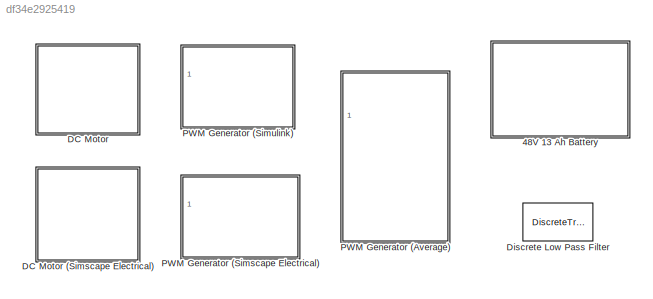
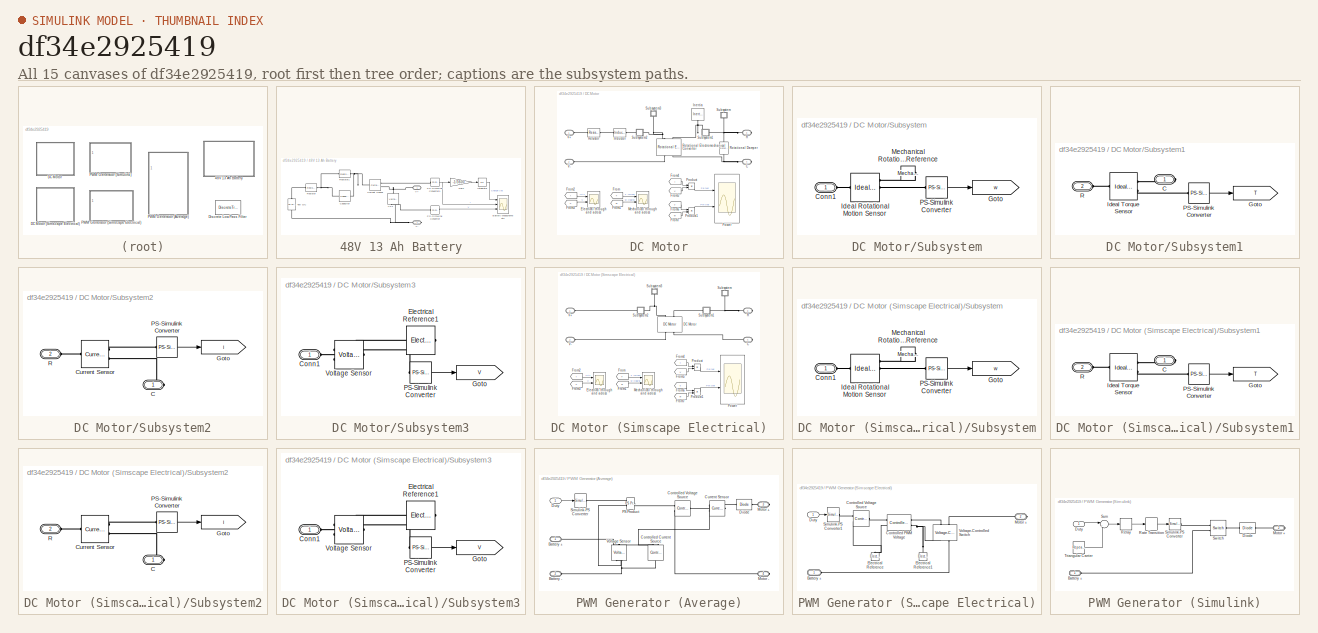
[diagram: thumbnail index - all 15 canvases of the model, root first then tree order]
MODEL slx_df34e2925419
KIND library
CONFIG AbsTol = 1e-3
CONFIG EnableMultiTasking = on
CONFIG FixedStep = auto
CONFIG MaxStep = auto
CONFIG MinStep = auto
CONFIG RelTol = 1e-3
CONFIG SampleTimeConstraint = Unconstrained
CONFIG SolverName = ode23t
CONFIG StartTime = 0.0
CONFIG StopTime = 10.0
BLOCK [SubSystem] 48V 13 Ah Battery
  Ports = [0, 0, 0, 0, 0, 0, 2]
  RequestExecContextInheritance = off
BLOCK [Reference] 48V 13 Ah Battery/48V DC  REF=fl_lib/Electrical/Electrical Sources/DC Voltage Source
  NameLocation = right
  Ports = [0, 0, 0, 0, 0, 1, 1]
  SourceBlock = fl_lib/Electrical/Electrical Sources/DC Voltage Source
  SourceProductBaseCode = SS
  SourceType = DC Voltage Source
BLOCK [Scope] 48V 13 Ah Battery/Battery Measurements
  Floating = off
  NumInputPorts = 3
  Ports = [3]
  ScopeSpecificationString = Simulink.scopes.TimeScopeBlockCfg('CurrentConfiguration', extmgr.ConfigurationSet(extmgr.Configuration('Core','General UI',true),extmgr.Configuration('Core','Source UI',true),extmgr.Configuration('Sources','WiredSimulink',true,'DataLoggingSaveFormat','StructureWithTime','DataLoggingDecimation','1','DataLoggingDecimateData',true),extmgr.Configuration('Visuals','Time Domain',true,'SerializedDisplays...<+3480ch>
BLOCK [Reference] 48V 13 Ah Battery/Capacitor  REF=fl_lib/Electrical/Electrical Elements/Capacitor
  Ports = [0, 0, 0, 0, 0, 1, 1]
  SourceBlock = fl_lib/Electrical/Electrical Elements/Capacitor
  SourceProductBaseCode = SS
  SourceType = Capacitor
BLOCK [Reference] 48V 13 Ah Battery/Current Sensor  REF=fl_lib/Electrical/Electrical Sensors/Current Sensor
  NameLocation = top
  Ports = [0, 0, 0, 0, 0, 1, 2]
  SourceBlock = fl_lib/Electrical/Electrical Sensors/Current Sensor
  SourceProductBaseCode = SS
  SourceType = Current Sensor
BLOCK [Gain] 48V 13 Ah Battery/Gain
  Gain = -1/3600
BLOCK [Integrator] 48V 13 Ah Battery/Integrator
  AttributesFormatString = Initial Charge = %<InitialCondition> Ah
  InitialCondition = 13
  NameLocation = top
  Ports = [1, 1]
BLOCK [Reference] 48V 13 Ah Battery/PS-Simulink Converter  REF=nesl_utility/PS-Simulink
Converter
  Ports = [0, 1, 0, 0, 0, 1]
  SourceBlock = nesl_utility/PS-Simulink\nConverter
  SourceProductBaseCode = SS
  SourceType = PS-Simulink\nConverter
BLOCK [Reference] 48V 13 Ah Battery/PS-Simulink Converter1  REF=nesl_utility/PS-Simulink
Converter
  Ports = [0, 1, 0, 0, 0, 1]
  SourceBlock = nesl_utility/PS-Simulink\nConverter
  SourceProductBaseCode = SS
  SourceType = PS-Simulink\nConverter
BLOCK [Reference] 48V 13 Ah Battery/Resistor  REF=fl_lib/Electrical/Electrical Elements/Resistor
  Ports = [0, 0, 0, 0, 0, 1, 1]
  SourceBlock = fl_lib/Electrical/Electrical Elements/Resistor
  SourceProductBaseCode = SS
  SourceType = Resistor
BLOCK [Reference] 48V 13 Ah Battery/Resistor1  REF=fl_lib/Electrical/Electrical Elements/Resistor
  Ports = [0, 0, 0, 0, 0, 1, 1]
  SourceBlock = fl_lib/Electrical/Electrical Elements/Resistor
  SourceProductBaseCode = SS
  SourceType = Resistor
BLOCK [PMIOPort] 48V 13 Ah Battery/V+
  Side = Right
BLOCK [PMIOPort] 48V 13 Ah Battery/V-
  Port = 2
  Side = Right
BLOCK [Reference] 48V 13 Ah Battery/VS1  REF=fl_lib/Electrical/Electrical Sensors/Voltage Sensor
  NameLocation = right
  Ports = [0, 0, 0, 0, 0, 1, 2]
  SourceBlock = fl_lib/Electrical/Electrical Sensors/Voltage Sensor
  SourceProductBaseCode = SS
  SourceType = Voltage Sensor
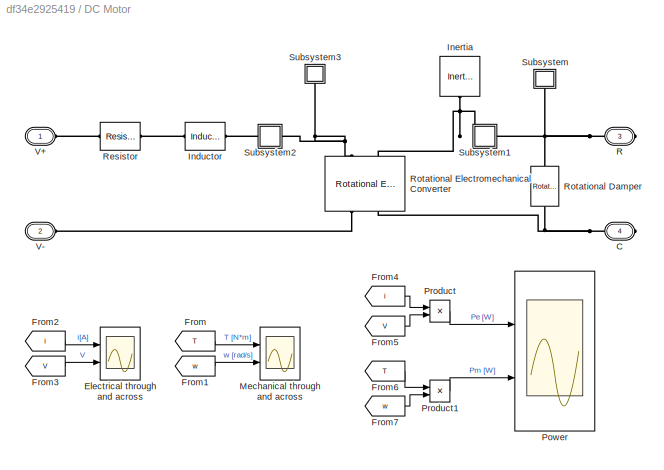
BLOCK [SubSystem] DC Motor
  Ports = [0, 0, 0, 0, 0, 2, 2]
  RequestExecContextInheritance = off
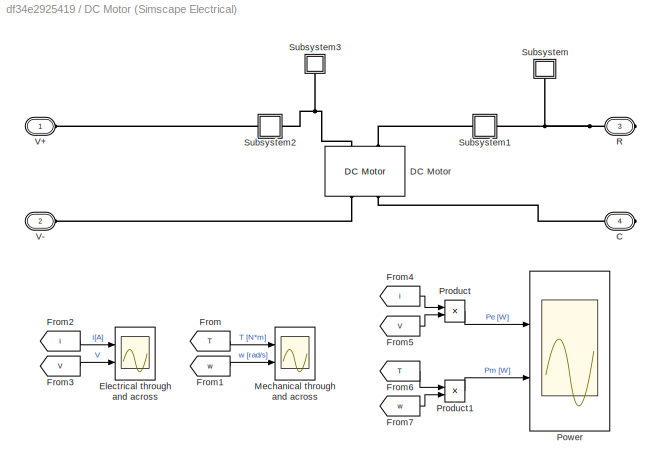
BLOCK [SubSystem] DC Motor (Simscape Electrical)
  Ports = [0, 0, 0, 0, 0, 2, 2]
  RequestExecContextInheritance = off
BLOCK [PMIOPort] DC Motor (Simscape Electrical)/C
  Port = 4
  Side = Right
  Tag = PMCPort
BLOCK [Reference] DC Motor (Simscape Electrical)/DC Motor  REF=ee_lib/Electromechanical/Brushed Motors/DC Motor
  NameLocation = right
  Ports = [0, 0, 0, 0, 0, 2, 2]
  SourceBlock = ee_lib/Electromechanical/Brushed Motors/DC Motor
  SourceProductBaseCode = PS
  SourceType = DC Motor
BLOCK [Scope] DC Motor (Simscape Electrical)/Electrical through and across
  Floating = off
  NumInputPorts = 2
  Ports = [2]
  ScopeSpecificationString = Simulink.scopes.TimeScopeBlockCfg('CurrentConfiguration', extmgr.ConfigurationSet(extmgr.Configuration('Core','General UI',true),extmgr.Configuration('Core','Source UI',true),extmgr.Configuration('Sources','WiredSimulink',true,'DataLoggingVariableName','ScopeData3','DataLoggingSaveFormat','StructureWithTime','DataLoggingDecimation','1','DataLoggingDecimateData',true),extmgr.Configuration('Visuals'...<+2704ch>
BLOCK [From] DC Motor (Simscape Electrical)/From
  GotoTag = T
  TagVisibility = global
BLOCK [From] DC Motor (Simscape Electrical)/From1
  GotoTag = w
  TagVisibility = global
BLOCK [From] DC Motor (Simscape Electrical)/From2
  GotoTag = i
  TagVisibility = global
BLOCK [From] DC Motor (Simscape Electrical)/From3
  GotoTag = V
  TagVisibility = global
BLOCK [From] DC Motor (Simscape Electrical)/From4
  GotoTag = i
  TagVisibility = global
BLOCK [From] DC Motor (Simscape Electrical)/From5
  GotoTag = V
  TagVisibility = global
BLOCK [From] DC Motor (Simscape Electrical)/From6
  GotoTag = T
  TagVisibility = global
BLOCK [From] DC Motor (Simscape Electrical)/From7
  GotoTag = w
  TagVisibility = global
BLOCK [Scope] DC Motor (Simscape Electrical)/Mechanical through and across
  Floating = off
  NumInputPorts = 2
  Ports = [2]
  ScopeSpecificationString = Simulink.scopes.TimeScopeBlockCfg('CurrentConfiguration', extmgr.ConfigurationSet(extmgr.Configuration('Core','General UI',true),extmgr.Configuration('Core','Source UI',true),extmgr.Configuration('Sources','WiredSimulink',true,'DataLoggingVariableName','ScopeData4','DataLoggingSaveFormat','StructureWithTime','DataLoggingDecimation','1','DataLoggingDecimateData',true),extmgr.Configuration('Visuals'...<+2684ch>
BLOCK [Scope] DC Motor (Simscape Electrical)/Power
  Floating = off
  NumInputPorts = 2
  Ports = [2]
  ScopeSpecificationString = Simulink.scopes.TimeScopeBlockCfg('CurrentConfiguration', extmgr.ConfigurationSet(extmgr.Configuration('Core','General UI',true),extmgr.Configuration('Core','Source UI',true),extmgr.Configuration('Sources','WiredSimulink',true,'DataLoggingVariableName','ScopeData2','DataLoggingSaveFormat','StructureWithTime','DataLoggingDecimation','1','DataLoggingDecimateData',true),extmgr.Configuration('Visuals'...<+2681ch>
BLOCK [Product] DC Motor (Simscape Electrical)/Product
  Ports = [2, 1]
  RndMeth = Zero
BLOCK [Product] DC Motor (Simscape Electrical)/Product1
  Ports = [2, 1]
  RndMeth = Zero
BLOCK [PMIOPort] DC Motor (Simscape Electrical)/R
  Port = 3
  Side = Right
  Tag = PMCPort
BLOCK [SubSystem] DC Motor (Simscape Electrical)/Subsystem
  NameLocation = right
  Ports = [0, 0, 0, 0, 0, 1]
  RequestExecContextInheritance = off
BLOCK [PMIOPort] DC Motor (Simscape Electrical)/Subsystem/Conn1
  Side = Left
BLOCK [Goto] DC Motor (Simscape Electrical)/Subsystem/Goto
  GotoTag = w
  TagVisibility = global
BLOCK [Reference] DC Motor (Simscape Electrical)/Subsystem/Ideal Rotational Motion Sensor  REF=fl_lib/Mechanical/Mechanical Sensors/Ideal Rotational
Motion Sensor
  Ports = [0, 0, 0, 0, 0, 1, 3]
  SourceBlock = fl_lib/Mechanical/Mechanical Sensors/Ideal Rotational\nMotion Sensor
  SourceProductBaseCode = SS
  SourceType = Ideal Rotational\nMotion Sensor
BLOCK [Reference] DC Motor (Simscape Electrical)/Subsystem/Mechanical Rotational Reference  REF=fl_lib/Mechanical/Rotational Elements/Mechanical
Rotational Reference
  NameLocation = top
  Ports = [0, 0, 0, 0, 0, 1]
  SourceBlock = fl_lib/Mechanical/Rotational Elements/Mechanical\nRotational Reference
  SourceProductBaseCode = SS
  SourceType = Mechanical\nRotational Reference
BLOCK [Reference] DC Motor (Simscape Electrical)/Subsystem/PS-Simulink Converter  REF=nesl_utility/PS-Simulink
Converter
  Ports = [0, 1, 0, 0, 0, 1]
  SourceBlock = nesl_utility/PS-Simulink\nConverter
  SourceProductBaseCode = SS
  SourceType = PS-Simulink\nConverter
BLOCK [SubSystem] DC Motor (Simscape Electrical)/Subsystem1
  Ports = [0, 0, 0, 0, 0, 1, 1]
  RequestExecContextInheritance = off
BLOCK [PMIOPort] DC Motor (Simscape Electrical)/Subsystem1/C
  Side = Right
BLOCK [Goto] DC Motor (Simscape Electrical)/Subsystem1/Goto
  GotoTag = T
  TagVisibility = global
BLOCK [Reference] DC Motor (Simscape Electrical)/Subsystem1/Ideal Torque Sensor  REF=fl_lib/Mechanical/Mechanical Sensors/Ideal Torque Sensor
  Ports = [0, 0, 0, 0, 0, 1, 2]
  SourceBlock = fl_lib/Mechanical/Mechanical Sensors/Ideal Torque Sensor
  SourceProductBaseCode = SS
  SourceType = Ideal Torque Sensor
BLOCK [Reference] DC Motor (Simscape Electrical)/Subsystem1/PS-Simulink Converter  REF=nesl_utility/PS-Simulink
Converter
  Ports = [0, 1, 0, 0, 0, 1]
  SourceBlock = nesl_utility/PS-Simulink\nConverter
  SourceProductBaseCode = SS
  SourceType = PS-Simulink\nConverter
BLOCK [PMIOPort] DC Motor (Simscape Electrical)/Subsystem1/R
  Port = 2
  Side = Left
BLOCK [SubSystem] DC Motor (Simscape Electrical)/Subsystem2
  Ports = [0, 0, 0, 0, 0, 1, 1]
  RequestExecContextInheritance = off
BLOCK [PMIOPort] DC Motor (Simscape Electrical)/Subsystem2/C
  Side = Right
BLOCK [Reference] DC Motor (Simscape Electrical)/Subsystem2/Current Sensor  REF=fl_lib/Electrical/Electrical Sensors/Current Sensor
  Ports = [0, 0, 0, 0, 0, 1, 2]
  SourceBlock = fl_lib/Electrical/Electrical Sensors/Current Sensor
  SourceProductBaseCode = SS
  SourceType = Current Sensor
BLOCK [Goto] DC Motor (Simscape Electrical)/Subsystem2/Goto
  GotoTag = i
  TagVisibility = global
BLOCK [Reference] DC Motor (Simscape Electrical)/Subsystem2/PS-Simulink Converter  REF=nesl_utility/PS-Simulink
Converter
  Ports = [0, 1, 0, 0, 0, 1]
  SourceBlock = nesl_utility/PS-Simulink\nConverter
  SourceProductBaseCode = SS
  SourceType = PS-Simulink\nConverter
BLOCK [PMIOPort] DC Motor (Simscape Electrical)/Subsystem2/R
  Port = 2
  Side = Left
BLOCK [SubSystem] DC Motor (Simscape Electrical)/Subsystem3
  NameLocation = right
  Ports = [0, 0, 0, 0, 0, 1]
  RequestExecContextInheritance = off
BLOCK [PMIOPort] DC Motor (Simscape Electrical)/Subsystem3/Conn1
  Side = Left
BLOCK [Reference] DC Motor (Simscape Electrical)/Subsystem3/Electrical Reference1  REF=fl_lib/Electrical/Electrical Elements/Electrical Reference
  NameLocation = top
  Ports = [0, 0, 0, 0, 0, 1]
  SourceBlock = fl_lib/Electrical/Electrical Elements/Electrical Reference
  SourceProductBaseCode = SS
  SourceType = Electrical Reference
BLOCK [Goto] DC Motor (Simscape Electrical)/Subsystem3/Goto
  GotoTag = V
  TagVisibility = global
BLOCK [Reference] DC Motor (Simscape Electrical)/Subsystem3/PS-Simulink Converter  REF=nesl_utility/PS-Simulink
Converter
  Ports = [0, 1, 0, 0, 0, 1]
  SourceBlock = nesl_utility/PS-Simulink\nConverter
  SourceProductBaseCode = SS
  SourceType = PS-Simulink\nConverter
BLOCK [Reference] DC Motor (Simscape Electrical)/Subsystem3/Voltage Sensor  REF=fl_lib/Electrical/Electrical Sensors/Voltage Sensor
  NameLocation = top
  Ports = [0, 0, 0, 0, 0, 1, 2]
  SourceBlock = fl_lib/Electrical/Electrical Sensors/Voltage Sensor
  SourceProductBaseCode = SS
  SourceType = Voltage Sensor
BLOCK [PMIOPort] DC Motor (Simscape Electrical)/V+
  NameLocation = top
  Side = Left
  Tag = PMCPort
BLOCK [PMIOPort] DC Motor (Simscape Electrical)/V-
  NameLocation = top
  Port = 2
  Side = Left
  Tag = PMCPort
BLOCK [PMIOPort] DC Motor/C
  Port = 4
  Side = Right
  Tag = PMCPort
BLOCK [Scope] DC Motor/Electrical through and across
  Floating = off
  NumInputPorts = 2
  Ports = [2]
  ScopeSpecificationString = Simulink.scopes.TimeScopeBlockCfg('CurrentConfiguration', extmgr.ConfigurationSet(extmgr.Configuration('Core','General UI',true),extmgr.Configuration('Core','Source UI',true),extmgr.Configuration('Sources','WiredSimulink',true,'DataLoggingVariableName','ScopeData3','DataLoggingSaveFormat','StructureWithTime','DataLoggingDecimation','1','DataLoggingDecimateData',true),extmgr.Configuration('Visuals'...<+2704ch>
BLOCK [From] DC Motor/From
  GotoTag = T
  TagVisibility = global
BLOCK [From] DC Motor/From1
  GotoTag = w
  TagVisibility = global
BLOCK [From] DC Motor/From2
  GotoTag = i
  TagVisibility = global
BLOCK [From] DC Motor/From3
  GotoTag = V
  TagVisibility = global
BLOCK [From] DC Motor/From4
  GotoTag = i
  TagVisibility = global
BLOCK [From] DC Motor/From5
  GotoTag = V
  TagVisibility = global
BLOCK [From] DC Motor/From6
  GotoTag = T
  TagVisibility = global
BLOCK [From] DC Motor/From7
  GotoTag = w
  TagVisibility = global
BLOCK [Reference] DC Motor/Inductor  REF=fl_lib/Electrical/Electrical Elements/Inductor
  Ports = [0, 0, 0, 0, 0, 1, 1]
  SourceBlock = fl_lib/Electrical/Electrical Elements/Inductor
  SourceProductBaseCode = SS
  SourceType = Inductor
BLOCK [Reference] DC Motor/Inertia  REF=fl_lib/Mechanical/Rotational Elements/Inertia
  NameLocation = left
  Ports = [0, 0, 0, 0, 0, 1]
  SourceBlock = fl_lib/Mechanical/Rotational Elements/Inertia
  SourceProductBaseCode = SS
  SourceType = Inertia
BLOCK [Scope] DC Motor/Mechanical through and across
  Floating = off
  NumInputPorts = 2
  Ports = [2]
  ScopeSpecificationString = Simulink.scopes.TimeScopeBlockCfg('CurrentConfiguration', extmgr.ConfigurationSet(extmgr.Configuration('Core','General UI',true),extmgr.Configuration('Core','Source UI',true),extmgr.Configuration('Sources','WiredSimulink',true,'DataLoggingVariableName','ScopeData4','DataLoggingSaveFormat','StructureWithTime','DataLoggingDecimation','1','DataLoggingDecimateData',true),extmgr.Configuration('Visuals'...<+2684ch>
BLOCK [Scope] DC Motor/Power
  Floating = off
  NumInputPorts = 2
  Ports = [2]
  ScopeSpecificationString = Simulink.scopes.TimeScopeBlockCfg('CurrentConfiguration', extmgr.ConfigurationSet(extmgr.Configuration('Core','General UI',true),extmgr.Configuration('Core','Source UI',true),extmgr.Configuration('Sources','WiredSimulink',true,'DataLoggingVariableName','ScopeData2','DataLoggingSaveFormat','StructureWithTime','DataLoggingDecimation','1','DataLoggingDecimateData',true),extmgr.Configuration('Visuals'...<+2681ch>
BLOCK [Product] DC Motor/Product
  Ports = [2, 1]
  RndMeth = Zero
BLOCK [Product] DC Motor/Product1
  Ports = [2, 1]
  RndMeth = Zero
BLOCK [PMIOPort] DC Motor/R
  Port = 3
  Side = Right
  Tag = PMCPort
BLOCK [Reference] DC Motor/Resistor  REF=fl_lib/Electrical/Electrical Elements/Resistor
  Ports = [0, 0, 0, 0, 0, 1, 1]
  SourceBlock = fl_lib/Electrical/Electrical Elements/Resistor
  SourceProductBaseCode = SS
  SourceType = Resistor
BLOCK [Reference] DC Motor/Rotational Damper  REF=fl_lib/Mechanical/Rotational Elements/Rotational Damper
  NameLocation = right
  Ports = [0, 0, 0, 0, 0, 1, 1]
  SourceBlock = fl_lib/Mechanical/Rotational Elements/Rotational Damper
  SourceProductBaseCode = SS
  SourceType = Rotational Damper
BLOCK [Reference] DC Motor/Rotational Electromechanical Converter  REF=fl_lib/Electrical/Electrical Elements/Rotational
Electromechanical
Converter
  NameLocation = right
  Ports = [0, 0, 0, 0, 0, 2, 2]
  SourceBlock = fl_lib/Electrical/Electrical Elements/Rotational\nElectromechanical\nConverter
  SourceProductBaseCode = SS
  SourceType = Rotational\nElectromechanical\nConverter
BLOCK [SubSystem] DC Motor/Subsystem
  NameLocation = right
  Ports = [0, 0, 0, 0, 0, 1]
  RequestExecContextInheritance = off
BLOCK [PMIOPort] DC Motor/Subsystem/Conn1
  Side = Left
BLOCK [Goto] DC Motor/Subsystem/Goto
  GotoTag = w
  TagVisibility = global
BLOCK [Reference] DC Motor/Subsystem/Ideal Rotational Motion Sensor  REF=fl_lib/Mechanical/Mechanical Sensors/Ideal Rotational
Motion Sensor
  Ports = [0, 0, 0, 0, 0, 1, 3]
  SourceBlock = fl_lib/Mechanical/Mechanical Sensors/Ideal Rotational\nMotion Sensor
  SourceProductBaseCode = SS
  SourceType = Ideal Rotational\nMotion Sensor
BLOCK [Reference] DC Motor/Subsystem/Mechanical Rotational Reference  REF=fl_lib/Mechanical/Rotational Elements/Mechanical
Rotational Reference
  NameLocation = top
  Ports = [0, 0, 0, 0, 0, 1]
  SourceBlock = fl_lib/Mechanical/Rotational Elements/Mechanical\nRotational Reference
  SourceProductBaseCode = SS
  SourceType = Mechanical\nRotational Reference
BLOCK [Reference] DC Motor/Subsystem/PS-Simulink Converter  REF=nesl_utility/PS-Simulink
Converter
  Ports = [0, 1, 0, 0, 0, 1]
  SourceBlock = nesl_utility/PS-Simulink\nConverter
  SourceProductBaseCode = SS
  SourceType = PS-Simulink\nConverter
BLOCK [SubSystem] DC Motor/Subsystem1
  Ports = [0, 0, 0, 0, 0, 1, 1]
  RequestExecContextInheritance = off
BLOCK [PMIOPort] DC Motor/Subsystem1/C
  Side = Right
BLOCK [Goto] DC Motor/Subsystem1/Goto
  GotoTag = T
  TagVisibility = global
BLOCK [Reference] DC Motor/Subsystem1/Ideal Torque Sensor  REF=fl_lib/Mechanical/Mechanical Sensors/Ideal Torque Sensor
  Ports = [0, 0, 0, 0, 0, 1, 2]
  SourceBlock = fl_lib/Mechanical/Mechanical Sensors/Ideal Torque Sensor
  SourceProductBaseCode = SS
  SourceType = Ideal Torque Sensor
BLOCK [Reference] DC Motor/Subsystem1/PS-Simulink Converter  REF=nesl_utility/PS-Simulink
Converter
  Ports = [0, 1, 0, 0, 0, 1]
  SourceBlock = nesl_utility/PS-Simulink\nConverter
  SourceProductBaseCode = SS
  SourceType = PS-Simulink\nConverter
BLOCK [PMIOPort] DC Motor/Subsystem1/R
  Port = 2
  Side = Left
BLOCK [SubSystem] DC Motor/Subsystem2
  Ports = [0, 0, 0, 0, 0, 1, 1]
  RequestExecContextInheritance = off
BLOCK [PMIOPort] DC Motor/Subsystem2/C
  Side = Right
BLOCK [Reference] DC Motor/Subsystem2/Current Sensor  REF=fl_lib/Electrical/Electrical Sensors/Current Sensor
  Ports = [0, 0, 0, 0, 0, 1, 2]
  SourceBlock = fl_lib/Electrical/Electrical Sensors/Current Sensor
  SourceProductBaseCode = SS
  SourceType = Current Sensor
BLOCK [Goto] DC Motor/Subsystem2/Goto
  GotoTag = i
  TagVisibility = global
BLOCK [Reference] DC Motor/Subsystem2/PS-Simulink Converter  REF=nesl_utility/PS-Simulink
Converter
  Ports = [0, 1, 0, 0, 0, 1]
  SourceBlock = nesl_utility/PS-Simulink\nConverter
  SourceProductBaseCode = SS
  SourceType = PS-Simulink\nConverter
BLOCK [PMIOPort] DC Motor/Subsystem2/R
  Port = 2
  Side = Left
BLOCK [SubSystem] DC Motor/Subsystem3
  NameLocation = right
  Ports = [0, 0, 0, 0, 0, 1]
  RequestExecContextInheritance = off
BLOCK [PMIOPort] DC Motor/Subsystem3/Conn1
  Side = Left
BLOCK [Reference] DC Motor/Subsystem3/Electrical Reference1  REF=fl_lib/Electrical/Electrical Elements/Electrical Reference
  NameLocation = top
  Ports = [0, 0, 0, 0, 0, 1]
  SourceBlock = fl_lib/Electrical/Electrical Elements/Electrical Reference
  SourceProductBaseCode = SS
  SourceType = Electrical Reference
BLOCK [Goto] DC Motor/Subsystem3/Goto
  GotoTag = V
  TagVisibility = global
BLOCK [Reference] DC Motor/Subsystem3/PS-Simulink Converter  REF=nesl_utility/PS-Simulink
Converter
  Ports = [0, 1, 0, 0, 0, 1]
  SourceBlock = nesl_utility/PS-Simulink\nConverter
  SourceProductBaseCode = SS
  SourceType = PS-Simulink\nConverter
BLOCK [Reference] DC Motor/Subsystem3/Voltage Sensor  REF=fl_lib/Electrical/Electrical Sensors/Voltage Sensor
  NameLocation = top
  Ports = [0, 0, 0, 0, 0, 1, 2]
  SourceBlock = fl_lib/Electrical/Electrical Sensors/Voltage Sensor
  SourceProductBaseCode = SS
  SourceType = Voltage Sensor
BLOCK [PMIOPort] DC Motor/V+
  NameLocation = top
  Side = Left
  Tag = PMCPort
BLOCK [PMIOPort] DC Motor/V-
  NameLocation = top
  Port = 2
  Side = Left
  Tag = PMCPort
BLOCK [DiscreteTransferFcn] Discrete Low Pass Filter
  Denominator = [1 -0.00186744]
  InputPortMap = u0
  Numerator = [0.9981326]
  Ports = [1, 1]
  SampleTime = 0.05
BLOCK [SubSystem] PWM Generator (Average)
  Ports = [1, 0, 0, 0, 0, 2, 2]
  RequestExecContextInheritance = off
BLOCK [PMIOPort] PWM Generator (Average)/Battery +
  Side = Left
BLOCK [PMIOPort] PWM Generator (Average)/Battery -
  Port = 2
  Side = Left
BLOCK [Reference] PWM Generator (Average)/Controlled Current Source  REF=fl_lib/Electrical/Electrical Sources/Controlled Current
Source
  NameLocation = left
  Ports = [0, 0, 0, 0, 0, 1, 2]
  SourceBlock = fl_lib/Electrical/Electrical Sources/Controlled Current\nSource
  SourceProductBaseCode = SS
  SourceType = Controlled Current\nSource
BLOCK [Reference] PWM Generator (Average)/Controlled Voltage Source  REF=fl_lib/Electrical/Electrical Sources/Controlled Voltage
Source
  NameLocation = top
  Ports = [0, 0, 0, 0, 0, 1, 2]
  SourceBlock = fl_lib/Electrical/Electrical Sources/Controlled Voltage\nSource
  SourceProductBaseCode = SS
  SourceType = Controlled Voltage\nSource
BLOCK [Reference] PWM Generator (Average)/Current Sensor  REF=fl_lib/Electrical/Electrical Sensors/Current Sensor
  NameLocation = top
  Ports = [0, 0, 0, 0, 0, 1, 2]
  SourceBlock = fl_lib/Electrical/Electrical Sensors/Current Sensor
  SourceProductBaseCode = SS
  SourceType = Current Sensor
BLOCK [Reference] PWM Generator (Average)/Diode  REF=fl_lib/Electrical/Electrical Elements/Diode
  Ports = [0, 0, 0, 0, 0, 1, 1]
  SourceBlock = fl_lib/Electrical/Electrical Elements/Diode
  SourceProductBaseCode = SS
  SourceType = Diode
BLOCK [Inport] PWM Generator (Average)/Duty
BLOCK [PMIOPort] PWM Generator (Average)/Motor +
  Port = 3
  Side = Right
BLOCK [PMIOPort] PWM Generator (Average)/Motor -
  Port = 4
  Side = Right
BLOCK [Reference] PWM Generator (Average)/PS Product  REF=fl_lib/Physical Signals/Functions/PS Product
  NameLocation = top
  Ports = [0, 0, 0, 0, 0, 2, 1]
  SourceBlock = fl_lib/Physical Signals/Functions/PS Product
  SourceProductBaseCode = SS
  SourceType = PS Product
BLOCK [Reference] PWM Generator (Average)/Simulink-PS Converter  REF=nesl_utility/Simulink-PS
Converter
  Ports = [1, 0, 0, 0, 0, 0, 1]
  SourceBlock = nesl_utility/Simulink-PS\nConverter
  SourceProductBaseCode = SS
  SourceType = Simulink-PS\nConverter
BLOCK [Reference] PWM Generator (Average)/Voltage Sensor  REF=fl_lib/Electrical/Electrical Sensors/Voltage Sensor
  NameLocation = left
  Ports = [0, 0, 0, 0, 0, 1, 2]
  SourceBlock = fl_lib/Electrical/Electrical Sensors/Voltage Sensor
  SourceProductBaseCode = SS
  SourceType = Voltage Sensor
BLOCK [SubSystem] PWM Generator (Simscape Electrical)
  Ports = [1, 0, 0, 0, 0, 1, 1]
  RequestExecContextInheritance = off
BLOCK [PMIOPort] PWM Generator (Simscape Electrical)/Battery +
  Side = Left
BLOCK [Reference] PWM Generator (Simscape Electrical)/Controlled PWM Voltage  REF=ee_lib/Integrated Circuits/Controlled PWM
Voltage
  Ports = [0, 0, 0, 0, 0, 2, 2]
  SourceBlock = ee_lib/Integrated Circuits/Controlled PWM\nVoltage
  SourceProductBaseCode = PS
  SourceType = Controlled PWM\nVoltage
BLOCK [Reference] PWM Generator (Simscape Electrical)/Controlled Voltage Source  REF=fl_lib/Electrical/Electrical Sources/Controlled Voltage
Source
  NameLocation = top
  Ports = [0, 0, 0, 0, 0, 1, 2]
  SourceBlock = fl_lib/Electrical/Electrical Sources/Controlled Voltage\nSource
  SourceProductBaseCode = SS
  SourceType = Controlled Voltage\nSource
BLOCK [Inport] PWM Generator (Simscape Electrical)/Duty
BLOCK [Reference] PWM Generator (Simscape Electrical)/Electrical Reference  REF=fl_lib/Electrical/Electrical Elements/Electrical Reference
  NameLocation = right
  Ports = [0, 0, 0, 0, 0, 1]
  SourceBlock = fl_lib/Electrical/Electrical Elements/Electrical Reference
  SourceProductBaseCode = SS
  SourceType = Electrical Reference
BLOCK [Reference] PWM Generator (Simscape Electrical)/Electrical Reference1  REF=fl_lib/Electrical/Electrical Elements/Electrical Reference
  NameLocation = right
  Ports = [0, 0, 0, 0, 0, 1]
  SourceBlock = fl_lib/Electrical/Electrical Elements/Electrical Reference
  SourceProductBaseCode = SS
  SourceType = Electrical Reference
BLOCK [PMIOPort] PWM Generator (Simscape Electrical)/Motor +
  Port = 2
  Side = Right
BLOCK [Reference] PWM Generator (Simscape Electrical)/Simulink-PS Converter1  REF=nesl_utility/Simulink-PS
Converter
  Ports = [1, 0, 0, 0, 0, 0, 1]
  SourceBlock = nesl_utility/Simulink-PS\nConverter
  SourceProductBaseCode = SS
  SourceType = Simulink-PS\nConverter
BLOCK [Reference] PWM Generator (Simscape Electrical)/Voltage-Controlled Switch  REF=ee_lib/Additional
Components/SPICE Passives/Voltage-Controlled
Switch
  NameLocation = right
  Ports = [0, 0, 0, 0, 0, 2, 2]
  SourceBlock = ee_lib/Additional\nComponents/SPICE Passives/Voltage-Controlled\nSwitch
  SourceProductBaseCode = PS
  SourceType = Voltage-Controlled\nSwitch
BLOCK [SubSystem] PWM Generator (Simulink)
  Ports = [1, 0, 0, 0, 0, 1, 1]
  RequestExecContextInheritance = off
BLOCK [PMIOPort] PWM Generator (Simulink)/Battery +
  Side = Left
BLOCK [Reference] PWM Generator (Simulink)/Diode  REF=fl_lib/Electrical/Electrical Elements/Diode
  Ports = [0, 0, 0, 0, 0, 1, 1]
  SourceBlock = fl_lib/Electrical/Electrical Elements/Diode
  SourceProductBaseCode = SS
  SourceType = Diode
BLOCK [Inport] PWM Generator (Simulink)/Duty
BLOCK [PMIOPort] PWM Generator (Simulink)/Motor +
  Port = 2
  Side = Right
BLOCK [RateTransition] PWM Generator (Simulink)/Rate Transition
  OutPortSampleTime = Ts
BLOCK [Relay] PWM Generator (Simulink)/Relay
  OffSwitchValue = 1e-6
  OnSwitchValue = 1e-6
BLOCK [Reference] PWM Generator (Simulink)/Simulink-PS Converter  REF=nesl_utility/Simulink-PS
Converter
  Ports = [1, 0, 0, 0, 0, 0, 1]
  SourceBlock = nesl_utility/Simulink-PS\nConverter
  SourceProductBaseCode = SS
  SourceType = Simulink-PS\nConverter
BLOCK [Sum] PWM Generator (Simulink)/Sum
  Inputs = |+-
  Ports = [2, 1]
BLOCK [Reference] PWM Generator (Simulink)/Switch  REF=fl_lib/Electrical/Electrical Elements/Switch
  Ports = [0, 0, 0, 0, 0, 1, 2]
  SourceBlock = fl_lib/Electrical/Electrical Elements/Switch
  SourceProductBaseCode = SS
  SourceType = Switch
BLOCK [Reference] PWM Generator (Simulink)/Triangular Carrier  REF=simulink/Sources/Repeating
Sequence
  Ports = [0, 1]
  SourceBlock = simulink/Sources/Repeating\nSequence
  SourceProductBaseCode = SL
  SourceType = Repeating table
LINE 48V 13 Ah Battery/Gain:1 -> 48V 13 Ah Battery/Integrator:1
LINE 48V 13 Ah Battery/Integrator:1 -> 48V 13 Ah Battery/Battery Measurements:1
NET 48V 13 Ah Battery/PS-Simulink Converter1:1 -> 48V 13 Ah Battery/Battery Measurements:2, 48V 13 Ah Battery/Gain:1
LINE 48V 13 Ah Battery/PS-Simulink Converter:1 -> 48V 13 Ah Battery/Battery Measurements:3
LINE DC Motor (Simscape Electrical)/From1:1 -> DC Motor (Simscape Electrical)/Mechanical through and across:2
LINE DC Motor (Simscape Electrical)/From2:1 -> DC Motor (Simscape Electrical)/Electrical through and across:1
LINE DC Motor (Simscape Electrical)/From3:1 -> DC Motor (Simscape Electrical)/Electrical through and across:2
LINE DC Motor (Simscape Electrical)/From4:1 -> DC Motor (Simscape Electrical)/Product:1
LINE DC Motor (Simscape Electrical)/From5:1 -> DC Motor (Simscape Electrical)/Product:2
LINE DC Motor (Simscape Electrical)/From6:1 -> DC Motor (Simscape Electrical)/Product1:1
LINE DC Motor (Simscape Electrical)/From7:1 -> DC Motor (Simscape Electrical)/Product1:2
LINE DC Motor (Simscape Electrical)/From:1 -> DC Motor (Simscape Electrical)/Mechanical through and across:1
LINE DC Motor (Simscape Electrical)/Product1:1 -> DC Motor (Simscape Electrical)/Power:2
LINE DC Motor (Simscape Electrical)/Product:1 -> DC Motor (Simscape Electrical)/Power:1
LINE DC Motor (Simscape Electrical)/Subsystem/PS-Simulink Converter:1 -> DC Motor (Simscape Electrical)/Subsystem/Goto:1
LINE DC Motor (Simscape Electrical)/Subsystem1/PS-Simulink Converter:1 -> DC Motor (Simscape Electrical)/Subsystem1/Goto:1
LINE DC Motor (Simscape Electrical)/Subsystem2/PS-Simulink Converter:1 -> DC Motor (Simscape Electrical)/Subsystem2/Goto:1
LINE DC Motor (Simscape Electrical)/Subsystem3/PS-Simulink Converter:1 -> DC Motor (Simscape Electrical)/Subsystem3/Goto:1
LINE DC Motor/From1:1 -> DC Motor/Mechanical through and across:2
LINE DC Motor/From2:1 -> DC Motor/Electrical through and across:1
LINE DC Motor/From3:1 -> DC Motor/Electrical through and across:2
LINE DC Motor/From4:1 -> DC Motor/Product:1
LINE DC Motor/From5:1 -> DC Motor/Product:2
LINE DC Motor/From6:1 -> DC Motor/Product1:1
LINE DC Motor/From7:1 -> DC Motor/Product1:2
LINE DC Motor/From:1 -> DC Motor/Mechanical through and across:1
LINE DC Motor/Product1:1 -> DC Motor/Power:2
LINE DC Motor/Product:1 -> DC Motor/Power:1
LINE DC Motor/Subsystem/PS-Simulink Converter:1 -> DC Motor/Subsystem/Goto:1
LINE DC Motor/Subsystem1/PS-Simulink Converter:1 -> DC Motor/Subsystem1/Goto:1
LINE DC Motor/Subsystem2/PS-Simulink Converter:1 -> DC Motor/Subsystem2/Goto:1
LINE DC Motor/Subsystem3/PS-Simulink Converter:1 -> DC Motor/Subsystem3/Goto:1
LINE PWM Generator (Average)/Duty:1 -> PWM Generator (Average)/Simulink-PS Converter:1
LINE PWM Generator (Simscape Electrical)/Duty:1 -> PWM Generator (Simscape Electrical)/Simulink-PS Converter1:1
LINE PWM Generator (Simulink)/Duty:1 -> PWM Generator (Simulink)/Sum:1
LINE PWM Generator (Simulink)/Rate Transition:1 -> PWM Generator (Simulink)/Simulink-PS Converter:1
LINE PWM Generator (Simulink)/Relay:1 -> PWM Generator (Simulink)/Rate Transition:1
LINE PWM Generator (Simulink)/Sum:1 -> PWM Generator (Simulink)/Relay:1
LINE PWM Generator (Simulink)/Triangular Carrier:1 -> PWM Generator (Simulink)/Sum:2
PLINE 48V 13 Ah Battery/48V DC:LConn1 -- 48V 13 Ah Battery/Resistor:LConn1
PNET net1: 48V 13 Ah Battery/48V DC:RConn1 -- 48V 13 Ah Battery/V-:RConn1 -- 48V 13 Ah Battery/VS1:RConn2
PNET net2: 48V 13 Ah Battery/Capacitor:LConn1 -- 48V 13 Ah Battery/Resistor1:LConn1 -- 48V 13 Ah Battery/Resistor:RConn1
PNET net3: 48V 13 Ah Battery/Capacitor:RConn1 -- 48V 13 Ah Battery/Current Sensor:LConn1 -- 48V 13 Ah Battery/Resistor1:RConn1
PLINE 48V 13 Ah Battery/Current Sensor:RConn1 -- 48V 13 Ah Battery/PS-Simulink Converter1:LConn1
PNET net4: 48V 13 Ah Battery/Current Sensor:RConn2 -- 48V 13 Ah Battery/V+:RConn1 -- 48V 13 Ah Battery/VS1:LConn1
PLINE 48V 13 Ah Battery/PS-Simulink Converter:LConn1 -- 48V 13 Ah Battery/VS1:RConn1
PLINE DC Motor (Simscape Electrical)/C:RConn1 -- DC Motor (Simscape Electrical)/DC Motor:RConn2
PNET net5: DC Motor (Simscape Electrical)/DC Motor:LConn1 -- DC Motor (Simscape Electrical)/Subsystem2:RConn1 -- DC Motor (Simscape Electrical)/Subsystem3:LConn1
PLINE DC Motor (Simscape Electrical)/DC Motor:LConn2 -- DC Motor (Simscape Electrical)/Subsystem1:LConn1
PLINE DC Motor (Simscape Electrical)/DC Motor:RConn1 -- DC Motor (Simscape Electrical)/V-:RConn1
PNET net6: DC Motor (Simscape Electrical)/R:RConn1 -- DC Motor (Simscape Electrical)/Subsystem1:RConn1 -- DC Motor (Simscape Electrical)/Subsystem:LConn1
PLINE DC Motor (Simscape Electrical)/Subsystem/Conn1:RConn1 -- DC Motor (Simscape Electrical)/Subsystem/Ideal Rotational Motion Sensor:LConn1
PLINE DC Motor (Simscape Electrical)/Subsystem/Ideal Rotational Motion Sensor:RConn1 -- DC Motor (Simscape Electrical)/Subsystem/Mechanical Rotational Reference:LConn1
PLINE DC Motor (Simscape Electrical)/Subsystem/Ideal Rotational Motion Sensor:RConn2 -- DC Motor (Simscape Electrical)/Subsystem/PS-Simulink Converter:LConn1
PLINE DC Motor (Simscape Electrical)/Subsystem1/C:RConn1 -- DC Motor (Simscape Electrical)/Subsystem1/Ideal Torque Sensor:RConn1
PLINE DC Motor (Simscape Electrical)/Subsystem1/Ideal Torque Sensor:LConn1 -- DC Motor (Simscape Electrical)/Subsystem1/R:RConn1
PLINE DC Motor (Simscape Electrical)/Subsystem1/Ideal Torque Sensor:RConn2 -- DC Motor (Simscape Electrical)/Subsystem1/PS-Simulink Converter:LConn1
PLINE DC Motor (Simscape Electrical)/Subsystem2/C:RConn1 -- DC Motor (Simscape Electrical)/Subsystem2/Current Sensor:RConn2
PLINE DC Motor (Simscape Electrical)/Subsystem2/Current Sensor:LConn1 -- DC Motor (Simscape Electrical)/Subsystem2/R:RConn1
PLINE DC Motor (Simscape Electrical)/Subsystem2/Current Sensor:RConn1 -- DC Motor (Simscape Electrical)/Subsystem2/PS-Simulink Converter:LConn1
PLINE DC Motor (Simscape Electrical)/Subsystem2:LConn1 -- DC Motor (Simscape Electrical)/V+:RConn1
PLINE DC Motor (Simscape Electrical)/Subsystem3/Conn1:RConn1 -- DC Motor (Simscape Electrical)/Subsystem3/Voltage Sensor:LConn1
PLINE DC Motor (Simscape Electrical)/Subsystem3/Electrical Reference1:LConn1 -- DC Motor (Simscape Electrical)/Subsystem3/Voltage Sensor:RConn2
PLINE DC Motor (Simscape Electrical)/Subsystem3/PS-Simulink Converter:LConn1 -- DC Motor (Simscape Electrical)/Subsystem3/Voltage Sensor:RConn1
PNET net7: DC Motor/C:RConn1 -- DC Motor/Rotational Damper:RConn1 -- DC Motor/Rotational Electromechanical Converter:RConn2
PLINE DC Motor/Inductor:LConn1 -- DC Motor/Resistor:RConn1
PLINE DC Motor/Inductor:RConn1 -- DC Motor/Subsystem2:LConn1
PNET net8: DC Motor/Inertia:LConn1 -- DC Motor/Rotational Electromechanical Converter:LConn2 -- DC Motor/Subsystem1:LConn1
PNET net9: DC Motor/R:RConn1 -- DC Motor/Rotational Damper:LConn1 -- DC Motor/Subsystem1:RConn1 -- DC Motor/Subsystem:LConn1
PLINE DC Motor/Resistor:LConn1 -- DC Motor/V+:RConn1
PNET net10: DC Motor/Rotational Electromechanical Converter:LConn1 -- DC Motor/Subsystem2:RConn1 -- DC Motor/Subsystem3:LConn1
PLINE DC Motor/Rotational Electromechanical Converter:RConn1 -- DC Motor/V-:RConn1
PLINE DC Motor/Subsystem/Conn1:RConn1 -- DC Motor/Subsystem/Ideal Rotational Motion Sensor:LConn1
PLINE DC Motor/Subsystem/Ideal Rotational Motion Sensor:RConn1 -- DC Motor/Subsystem/Mechanical Rotational Reference:LConn1
PLINE DC Motor/Subsystem/Ideal Rotational Motion Sensor:RConn2 -- DC Motor/Subsystem/PS-Simulink Converter:LConn1
PLINE DC Motor/Subsystem1/C:RConn1 -- DC Motor/Subsystem1/Ideal Torque Sensor:RConn1
PLINE DC Motor/Subsystem1/Ideal Torque Sensor:LConn1 -- DC Motor/Subsystem1/R:RConn1
PLINE DC Motor/Subsystem1/Ideal Torque Sensor:RConn2 -- DC Motor/Subsystem1/PS-Simulink Converter:LConn1
PLINE DC Motor/Subsystem2/C:RConn1 -- DC Motor/Subsystem2/Current Sensor:RConn2
PLINE DC Motor/Subsystem2/Current Sensor:LConn1 -- DC Motor/Subsystem2/R:RConn1
PLINE DC Motor/Subsystem2/Current Sensor:RConn1 -- DC Motor/Subsystem2/PS-Simulink Converter:LConn1
PLINE DC Motor/Subsystem3/Conn1:RConn1 -- DC Motor/Subsystem3/Voltage Sensor:LConn1
PLINE DC Motor/Subsystem3/Electrical Reference1:LConn1 -- DC Motor/Subsystem3/Voltage Sensor:RConn2
PLINE DC Motor/Subsystem3/PS-Simulink Converter:LConn1 -- DC Motor/Subsystem3/Voltage Sensor:RConn1
PNET net11: PWM Generator (Average)/Battery +:RConn1 -- PWM Generator (Average)/Controlled Current Source:RConn2 -- PWM Generator (Average)/Voltage Sensor:LConn1
PNET net12: PWM Generator (Average)/Battery -:RConn1 -- PWM Generator (Average)/Controlled Current Source:LConn1 -- PWM Generator (Average)/Voltage Sensor:RConn2
PLINE PWM Generator (Average)/Controlled Current Source:RConn1 -- PWM Generator (Average)/Current Sensor:RConn1
PLINE PWM Generator (Average)/Controlled Voltage Source:LConn1 -- PWM Generator (Average)/Current Sensor:LConn1
PLINE PWM Generator (Average)/Controlled Voltage Source:RConn1 -- PWM Generator (Average)/PS Product:RConn1
PLINE PWM Generator (Average)/Controlled Voltage Source:RConn2 -- PWM Generator (Average)/Motor -:RConn1
PLINE PWM Generator (Average)/Current Sensor:RConn2 -- PWM Generator (Average)/Diode:LConn1
PLINE PWM Generator (Average)/Diode:RConn1 -- PWM Generator (Average)/Motor +:RConn1
PLINE PWM Generator (Average)/PS Product:LConn1 -- PWM Generator (Average)/Simulink-PS Converter:RConn1
PLINE PWM Generator (Average)/PS Product:LConn2 -- PWM Generator (Average)/Voltage Sensor:RConn1
PLINE PWM Generator (Simscape Electrical)/Battery +:RConn1 -- PWM Generator (Simscape Electrical)/Voltage-Controlled Switch:RConn2
PLINE PWM Generator (Simscape Electrical)/Controlled PWM Voltage:LConn1 -- PWM Generator (Simscape Electrical)/Controlled Voltage Source:LConn1
PNET net13: PWM Generator (Simscape Electrical)/Controlled PWM Voltage:LConn2 -- PWM Generator (Simscape Electrical)/Controlled Voltage Source:RConn2 -- PWM Generator (Simscape Electrical)/Electrical Reference:LConn1
PLINE PWM Generator (Simscape Electrical)/Controlled PWM Voltage:RConn1 -- PWM Generator (Simscape Electrical)/Voltage-Controlled Switch:LConn1
PNET net14: PWM Generator (Simscape Electrical)/Controlled PWM Voltage:RConn2 -- PWM Generator (Simscape Electrical)/Electrical Reference1:LConn1 -- PWM Generator (Simscape Electrical)/Voltage-Controlled Switch:RConn1
PLINE PWM Generator (Simscape Electrical)/Controlled Voltage Source:RConn1 -- PWM Generator (Simscape Electrical)/Simulink-PS Converter1:RConn1
PLINE PWM Generator (Simscape Electrical)/Motor +:RConn1 -- PWM Generator (Simscape Electrical)/Voltage-Controlled Switch:LConn2
PLINE PWM Generator (Simulink)/Battery +:RConn1 -- PWM Generator (Simulink)/Switch:RConn2
PLINE PWM Generator (Simulink)/Diode:LConn1 -- PWM Generator (Simulink)/Switch:LConn1
PLINE PWM Generator (Simulink)/Diode:RConn1 -- PWM Generator (Simulink)/Motor +:RConn1
PLINE PWM Generator (Simulink)/Simulink-PS Converter:RConn1 -- PWM Generator (Simulink)/Switch:RConn1
note: NET lines group one-source signal fan-out (src -> all destinations, sorted); 1:1 wires keep LINE; PNET lines group multi-terminal physical nets as a canonical sorted terminal list (undirected conserving connections); 2-terminal nets keep the pairwise PLINE form
